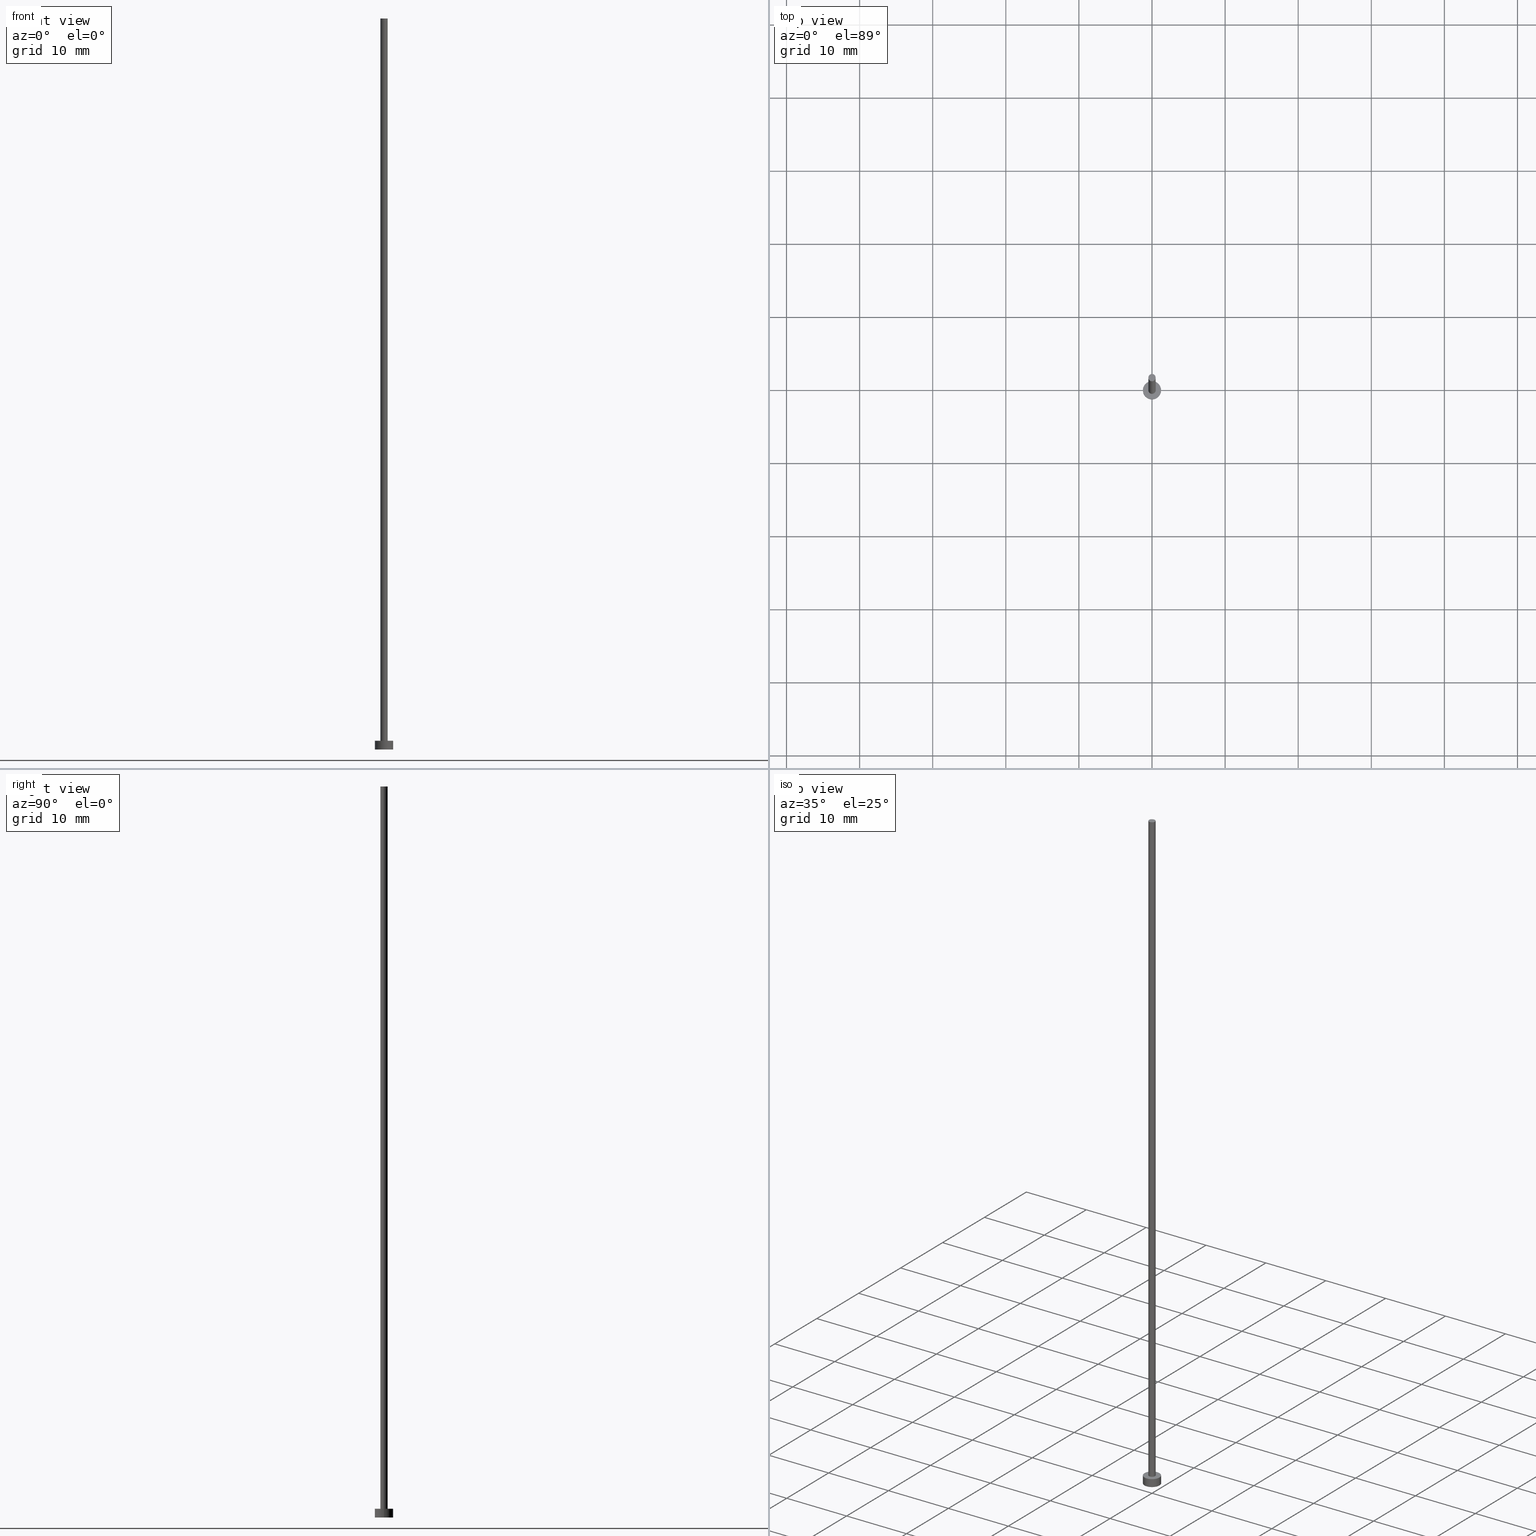
[diagram: canonical four-view strip — front | top / right | iso, engineering-drawing reading convention]
A machine part, canonical four-view strip (front | top / right | iso — engineering-drawing reading convention). The complete STEP part file that produces these views, byte-faithful:
ISO-10303-21;
HEADER;
FILE_DESCRIPTION (( 'STEP AP203' ),
    '1' );
FILE_NAME ('0186.STEP',
    '2024-06-05T07:44:16',
    ( '' ),
    ( '' ),
    'SwSTEP 2.0',
    'SolidWorks 2019',
    '' );
FILE_SCHEMA (( 'CONFIG_CONTROL_DESIGN' ));
ENDSEC;

DATA;
#1 = CALENDAR_DATE ( 2024, 5, 6 ) ;
#2 = ORIENTED_EDGE ( 'NONE', *, *, #16, .F. ) ;
#3 = CC_DESIGN_DATE_AND_TIME_ASSIGNMENT ( #146, #101, ( #56 ) ) ;
#4 = DIRECTION ( 'NONE',  ( 0.000000000000000000, 0.000000000000000000, 1.000000000000000000 ) ) ;
#5 = ORIENTED_EDGE ( 'NONE', *, *, #85, .F. ) ;
#6 = ORIENTED_EDGE ( 'NONE', *, *, #182, .T. ) ;
#7 = ORIENTED_EDGE ( 'NONE', *, *, #85, .T. ) ;
#8 = UNCERTAINTY_MEASURE_WITH_UNIT (LENGTH_MEASURE( 1.000000000000000082E-05 ), #197, 'distance_accuracy_value', 'NONE');
#9 = AXIS2_PLACEMENT_3D ( 'NONE', #207, #115, #190 ) ;
#10 = DIRECTION ( 'NONE',  ( 0.000000000000000000, 0.000000000000000000, 1.000000000000000000 ) ) ;
#11 = DIRECTION ( 'NONE',  ( 1.000000000000000000, 0.000000000000000000, 0.000000000000000000 ) ) ;
#12 = CARTESIAN_POINT ( 'NONE',  ( 0.000000000000000000, 0.000000000000000000, 1.199999999999999956 ) ) ;
#13 = AXIS2_PLACEMENT_3D ( 'NONE', #169, #189, #51 ) ;
#14 = CC_DESIGN_APPROVAL ( #106, ( #56 ) ) ;
#15 = DIRECTION ( 'NONE',  ( 0.000000000000000000, 0.000000000000000000, 1.000000000000000000 ) ) ;
#16 = EDGE_CURVE ( 'NONE', #145, #104, #68, .T. ) ;
#17 = CARTESIAN_POINT ( 'NONE',  ( 0.000000000000000000, 0.000000000000000000, 0.000000000000000000 ) ) ;
#18 = PERSON_AND_ORGANIZATION ( #181, #187 ) ;
#19 = CC_DESIGN_PERSON_AND_ORGANIZATION_ASSIGNMENT ( #18, #151, ( #255 ) ) ;
#20 = LOCAL_TIME ( 9, 44, 16.00000000000000000, #57 ) ;
#21 =( NAMED_UNIT ( * ) SI_UNIT ( $, .STERADIAN. ) SOLID_ANGLE_UNIT ( ) );
#22 = CLOSED_SHELL ( 'NONE', ( #244, #235, #35, #214, #241, #124, #202 ) ) ;
#23 = EDGE_LOOP ( 'NONE', ( #29, #178, #88, #203 ) ) ;
#24 = DATE_AND_TIME ( #74, #153 ) ;
#25 = PERSON_AND_ORGANIZATION ( #181, #187 ) ;
#26 = EDGE_LOOP ( 'NONE', ( #215, #128, #201, #240 ) ) ;
#27 = SECURITY_CLASSIFICATION_LEVEL ( 'unclassified' ) ;
#28 = CC_DESIGN_APPROVAL ( #72, ( #177 ) ) ;
#29 = ORIENTED_EDGE ( 'NONE', *, *, #45, .F. ) ;
#30 = CARTESIAN_POINT ( 'NONE',  ( -1.250000000000000000, 0.000000000000000000, 1.199999999999999956 ) ) ;
#31 = VECTOR ( 'NONE', #133, 1000.000000000000000 ) ;
#32 = CARTESIAN_POINT ( 'NONE',  ( 0.000000000000000000, 0.000000000000000000, 100.0000000000000000 ) ) ;
#33 = DIRECTION ( 'NONE',  ( 0.000000000000000000, 0.000000000000000000, 1.000000000000000000 ) ) ;
#34 = CARTESIAN_POINT ( 'NONE',  ( 1.250000000000000000, 1.530808498934191571E-16, 0.000000000000000000 ) ) ;
#35 = ADVANCED_FACE ( 'NONE', ( #94 ), #150, .T. ) ;
#36 = CARTESIAN_POINT ( 'NONE',  ( 0.000000000000000000, 0.000000000000000000, 1.199999999999999956 ) ) ;
#37 = APPROVAL_DATE_TIME ( #84, #72 ) ;
#38 = DIRECTION ( 'NONE',  ( 0.000000000000000000, 0.000000000000000000, 1.000000000000000000 ) ) ;
#39 = CC_DESIGN_PERSON_AND_ORGANIZATION_ASSIGNMENT ( #238, #58, ( #177 ) ) ;
#40 = CALENDAR_DATE ( 2024, 5, 6 ) ;
#41 = FACE_OUTER_BOUND ( 'NONE', #144, .T. ) ;
#42 = CALENDAR_DATE ( 2024, 5, 6 ) ;
#43 = ORIENTED_EDGE ( 'NONE', *, *, #221, .F. ) ;
#44 = ORIENTED_EDGE ( 'NONE', *, *, #174, .F. ) ;
#45 = EDGE_CURVE ( 'NONE', #199, #145, #117, .T. ) ;
#46 = ORIENTED_EDGE ( 'NONE', *, *, #194, .F. ) ;
#47 = APPROVAL_PERSON_ORGANIZATION ( #179, #106, #86 ) ;
#48 = ORIENTED_EDGE ( 'NONE', *, *, #174, .T. ) ;
#49 = DIRECTION ( 'NONE',  ( 0.000000000000000000, 0.000000000000000000, 1.000000000000000000 ) ) ;
#50 = APPROVAL ( #175, 'NEUR�EN�' ) ;
#51 = DIRECTION ( 'NONE',  ( 1.000000000000000000, 0.000000000000000000, 0.000000000000000000 ) ) ;
#52 = CARTESIAN_POINT ( 'NONE',  ( 0.000000000000000000, 0.000000000000000000, 100.0000000000000000 ) ) ;
#53 = CARTESIAN_POINT ( 'NONE',  ( 0.000000000000000000, 0.000000000000000000, 100.0000000000000000 ) ) ;
#54 = DIRECTION ( 'NONE',  ( 1.000000000000000000, 0.000000000000000000, 0.000000000000000000 ) ) ;
#55 = CALENDAR_DATE ( 2024, 5, 6 ) ;
#56 = SECURITY_CLASSIFICATION ( '', '', #27 ) ;
#57 = COORDINATED_UNIVERSAL_TIME_OFFSET ( 1, 0, .AHEAD. ) ;
#58 = PERSON_AND_ORGANIZATION_ROLE ( 'creator' ) ;
#59 = CARTESIAN_POINT ( 'NONE',  ( 0.000000000000000000, 0.000000000000000000, 1.199999999999999956 ) ) ;
#60 = PERSON_AND_ORGANIZATION_ROLE ( 'design_owner' ) ;
#61 = APPROVAL_STATUS ( 'not_yet_approved' ) ;
#62 = EDGE_LOOP ( 'NONE', ( #46, #2 ) ) ;
#63 = ORIENTED_EDGE ( 'NONE', *, *, #142, .T. ) ;
#64 = CIRCLE ( 'NONE', #13, 1.250000000000000000 ) ;
#65 = EDGE_CURVE ( 'NONE', #204, #239, #111, .T. ) ;
#66 = PERSON_AND_ORGANIZATION_ROLE ( 'design_supplier' ) ;
#67 = ORIENTED_EDGE ( 'NONE', *, *, #97, .T. ) ;
#68 = CIRCLE ( 'NONE', #250, 1.250000000000000000 ) ;
#69 = AXIS2_PLACEMENT_3D ( 'NONE', #166, #76, #11 ) ;
#70 = CARTESIAN_POINT ( 'NONE',  ( 0.000000000000000000, 0.000000000000000000, 100.0000000000000000 ) ) ;
#71 = DESIGN_CONTEXT ( 'detailed design', #172, 'design' ) ;
#72 = APPROVAL ( #140, 'NEUR�EN�' ) ;
#73 = FACE_OUTER_BOUND ( 'NONE', #243, .T. ) ;
#74 = CALENDAR_DATE ( 2024, 5, 6 ) ;
#75 = PLANE ( 'NONE',  #123 ) ;
#76 = DIRECTION ( 'NONE',  ( 0.000000000000000000, 0.000000000000000000, 1.000000000000000000 ) ) ;
#77 = AXIS2_PLACEMENT_3D ( 'NONE', #59, #82, #212 ) ;
#78 = LOCAL_TIME ( 9, 44, 16.00000000000000000, #127 ) ;
#79 = DIRECTION ( 'NONE',  ( -0.000000000000000000, -0.000000000000000000, -1.000000000000000000 ) ) ;
#80 = COORDINATED_UNIVERSAL_TIME_OFFSET ( 1, 0, .AHEAD. ) ;
#81 = APPLICATION_PROTOCOL_DEFINITION ( 'international standard', 'config_control_design', 1994, #196 ) ;
#82 = DIRECTION ( 'NONE',  ( -0.000000000000000000, -0.000000000000000000, -1.000000000000000000 ) ) ;
#83 = PERSON_AND_ORGANIZATION ( #181, #187 ) ;
#84 = DATE_AND_TIME ( #40, #119 ) ;
#85 = EDGE_CURVE ( 'NONE', #183, #185, #254, .T. ) ;
#86 = APPROVAL_ROLE ( '' ) ;
#87 = PRODUCT ( '0186', '0186', '', ( #96 ) ) ;
#88 = ORIENTED_EDGE ( 'NONE', *, *, #129, .T. ) ;
#89 = DIRECTION ( 'NONE',  ( -1.000000000000000000, 0.000000000000000000, 0.000000000000000000 ) ) ;
#90 = VECTOR ( 'NONE', #226, 1000.000000000000000 ) ;
#91 = CARTESIAN_POINT ( 'NONE',  ( -0.5000000000000000000, 0.000000000000000000, 100.0000000000000000 ) ) ;
#92 = DIRECTION ( 'NONE',  ( 1.000000000000000000, 0.000000000000000000, -0.000000000000000000 ) ) ;
#93 = DIRECTION ( 'NONE',  ( 0.000000000000000000, 0.000000000000000000, 1.000000000000000000 ) ) ;
#94 = FACE_OUTER_BOUND ( 'NONE', #23, .T. ) ;
#95 = CC_DESIGN_APPROVAL ( #50, ( #255 ) ) ;
#96 = MECHANICAL_CONTEXT ( 'NONE', #196, 'mechanical' ) ;
#97 = EDGE_CURVE ( 'NONE', #239, #204, #112, .T. ) ;
#98 = DIRECTION ( 'NONE',  ( -0.000000000000000000, -0.000000000000000000, -1.000000000000000000 ) ) ;
#99 = CIRCLE ( 'NONE', #167, 0.5000000000000000000 ) ;
#100 = COORDINATED_UNIVERSAL_TIME_OFFSET ( 1, 0, .AHEAD. ) ;
#101 = DATE_TIME_ROLE ( 'classification_date' ) ;
#102 = AXIS2_PLACEMENT_3D ( 'NONE', #213, #98, #253 ) ;
#103 = APPROVAL_DATE_TIME ( #24, #106 ) ;
#104 = VERTEX_POINT ( 'NONE', #171 ) ;
#105 = PRODUCT_DEFINITION_SHAPE ( 'NONE', 'NONE',  #177 ) ;
#106 = APPROVAL ( #61, 'NEUR�EN�' ) ;
#107 = COORDINATED_UNIVERSAL_TIME_OFFSET ( 1, 0, .AHEAD. ) ;
#108 = EDGE_LOOP ( 'NONE', ( #109, #63 ) ) ;
#109 = ORIENTED_EDGE ( 'NONE', *, *, #229, .T. ) ;
#110 = LINE ( 'NONE', #188, #143 ) ;
#111 = CIRCLE ( 'NONE', #116, 0.5000000000000000000 ) ;
#112 = CIRCLE ( 'NONE', #69, 0.5000000000000000000 ) ;
#113 = PLANE ( 'NONE',  #162 ) ;
#114 = LINE ( 'NONE', #155, #31 ) ;
#115 = DIRECTION ( 'NONE',  ( 0.000000000000000000, 0.000000000000000000, 1.000000000000000000 ) ) ;
#116 = AXIS2_PLACEMENT_3D ( 'NONE', #12, #49, #54 ) ;
#117 = LINE ( 'NONE', #205, #217 ) ;
#118 = CIRCLE ( 'NONE', #9, 1.250000000000000000 ) ;
#119 = LOCAL_TIME ( 9, 44, 16.00000000000000000, #100 ) ;
#120 = DATE_AND_TIME ( #42, #20 ) ;
#121 = DATE_AND_TIME ( #55, #168 ) ;
#122 = APPROVAL_ROLE ( '' ) ;
#123 = AXIS2_PLACEMENT_3D ( 'NONE', #152, #248, #228 ) ;
#124 = ADVANCED_FACE ( 'NONE', ( #73 ), #154, .T. ) ;
#125 = APPROVAL_ROLE ( '' ) ;
#126 = PERSON_AND_ORGANIZATION ( #181, #187 ) ;
#127 = COORDINATED_UNIVERSAL_TIME_OFFSET ( 1, 0, .AHEAD. ) ;
#128 = ORIENTED_EDGE ( 'NONE', *, *, #45, .T. ) ;
#129 = EDGE_CURVE ( 'NONE', #147, #104, #206, .T. ) ;
#130 = CARTESIAN_POINT ( 'NONE',  ( 0.000000000000000000, 0.000000000000000000, 1.199999999999999956 ) ) ;
#131 = CARTESIAN_POINT ( 'NONE',  ( 1.250000000000000000, 1.530808498934191571E-16, 1.199999999999999956 ) ) ;
#132 = CARTESIAN_POINT ( 'NONE',  ( 0.5000000000000000000, 6.123233995736766036E-17, 100.0000000000000000 ) ) ;
#133 = DIRECTION ( 'NONE',  ( -0.000000000000000000, -0.000000000000000000, -1.000000000000000000 ) ) ;
#134 = DIRECTION ( 'NONE',  ( 1.000000000000000000, 0.000000000000000000, -0.000000000000000000 ) ) ;
#135 =( GEOMETRIC_REPRESENTATION_CONTEXT ( 3 ) GLOBAL_UNCERTAINTY_ASSIGNED_CONTEXT ( ( #8 ) ) GLOBAL_UNIT_ASSIGNED_CONTEXT ( ( #197, #161, #21 ) ) REPRESENTATION_CONTEXT ( 'NONE', 'WORKASPACE' ) );
#136 = CARTESIAN_POINT ( 'NONE',  ( 0.000000000000000000, 0.000000000000000000, 0.000000000000000000 ) ) ;
#137 = FACE_OUTER_BOUND ( 'NONE', #26, .T. ) ;
#138 = CC_DESIGN_PERSON_AND_ORGANIZATION_ASSIGNMENT ( #165, #66, ( #255 ) ) ;
#139 = CIRCLE ( 'NONE', #234, 1.250000000000000000 ) ;
#140 = APPROVAL_STATUS ( 'not_yet_approved' ) ;
#141 = ORIENTED_EDGE ( 'NONE', *, *, #65, .F. ) ;
#142 = EDGE_CURVE ( 'NONE', #199, #147, #139, .T. ) ;
#143 = VECTOR ( 'NONE', #186, 1000.000000000000000 ) ;
#144 = EDGE_LOOP ( 'NONE', ( #5, #6, #67, #44 ) ) ;
#145 = VERTEX_POINT ( 'NONE', #34 ) ;
#146 = DATE_AND_TIME ( #1, #78 ) ;
#147 = VERTEX_POINT ( 'NONE', #30 ) ;
#148 = AXIS2_PLACEMENT_3D ( 'NONE', #70, #33, #227 ) ;
#149 = DIRECTION ( 'NONE',  ( -1.000000000000000000, 0.000000000000000000, 0.000000000000000000 ) ) ;
#150 = CYLINDRICAL_SURFACE ( 'NONE', #216, 1.250000000000000000 ) ;
#151 = PERSON_AND_ORGANIZATION_ROLE ( 'creator' ) ;
#152 = CARTESIAN_POINT ( 'NONE',  ( 0.000000000000000000, 0.000000000000000000, 1.199999999999999956 ) ) ;
#153 = LOCAL_TIME ( 9, 44, 16.00000000000000000, #107 ) ;
#154 = CYLINDRICAL_SURFACE ( 'NONE', #195, 0.5000000000000000000 ) ;
#155 = CARTESIAN_POINT ( 'NONE',  ( 0.5000000000000000000, 6.123233995736766036E-17, 100.0000000000000000 ) ) ;
#156 = DIRECTION ( 'NONE',  ( 1.000000000000000000, 0.000000000000000000, 0.000000000000000000 ) ) ;
#157 = FACE_OUTER_BOUND ( 'NONE', #62, .T. ) ;
#158 = AXIS2_PLACEMENT_3D ( 'NONE', #17, #38, #134 ) ;
#159 = CC_DESIGN_DATE_AND_TIME_ASSIGNMENT ( #120, #211, ( #177 ) ) ;
#160 = CARTESIAN_POINT ( 'NONE',  ( 0.5000000000000000000, 6.123233995736766036E-17, 1.199999999999999956 ) ) ;
#161 =( NAMED_UNIT ( * ) PLANE_ANGLE_UNIT ( ) SI_UNIT ( $, .RADIAN. ) );
#162 = AXIS2_PLACEMENT_3D ( 'NONE', #32, #10, #92 ) ;
#163 = ORIENTED_EDGE ( 'NONE', *, *, #182, .F. ) ;
#164 = ORIENTED_EDGE ( 'NONE', *, *, #97, .F. ) ;
#165 = PERSON_AND_ORGANIZATION ( #181, #187 ) ;
#166 = CARTESIAN_POINT ( 'NONE',  ( 0.000000000000000000, 0.000000000000000000, 1.199999999999999956 ) ) ;
#167 = AXIS2_PLACEMENT_3D ( 'NONE', #52, #231, #209 ) ;
#168 = LOCAL_TIME ( 9, 44, 16.00000000000000000, #80 ) ;
#169 = CARTESIAN_POINT ( 'NONE',  ( 0.000000000000000000, 0.000000000000000000, 0.000000000000000000 ) ) ;
#170 = CARTESIAN_POINT ( 'NONE',  ( -0.5000000000000000000, 0.000000000000000000, 1.199999999999999956 ) ) ;
#171 = CARTESIAN_POINT ( 'NONE',  ( -1.250000000000000000, 0.000000000000000000, 0.000000000000000000 ) ) ;
#172 = APPLICATION_CONTEXT ( 'configuration controlled 3d designs of mechanical parts and assemblies' ) ;
#173 = DIRECTION ( 'NONE',  ( -0.000000000000000000, -0.000000000000000000, -1.000000000000000000 ) ) ;
#174 = EDGE_CURVE ( 'NONE', #185, #204, #110, .T. ) ;
#175 = APPROVAL_STATUS ( 'not_yet_approved' ) ;
#176 = CYLINDRICAL_SURFACE ( 'NONE', #77, 1.250000000000000000 ) ;
#177 = PRODUCT_DEFINITION ( 'NEZN�M�', '', #255, #71 ) ;
#178 = ORIENTED_EDGE ( 'NONE', *, *, #229, .F. ) ;
#179 = PERSON_AND_ORGANIZATION ( #181, #187 ) ;
#180 = CARTESIAN_POINT ( 'NONE',  ( 0.000000000000000000, 0.000000000000000000, 0.000000000000000000 ) ) ;
#181 = PERSON ( 'NEUR�EN�', 'NEUR�EN�', 'NEUR�EN�', ('NEUR�EN�'), ('NEUR�EN�'), ('NEUR�EN�') ) ;
#182 = EDGE_CURVE ( 'NONE', #183, #239, #114, .T. ) ;
#183 = VERTEX_POINT ( 'NONE', #132 ) ;
#184 = CC_DESIGN_SECURITY_CLASSIFICATION ( #56, ( #255 ) ) ;
#185 = VERTEX_POINT ( 'NONE', #91 ) ;
#186 = DIRECTION ( 'NONE',  ( -0.000000000000000000, -0.000000000000000000, -1.000000000000000000 ) ) ;
#187 = ORGANIZATION ( 'NEUR�EN�', 'NEUR�EN�', '' ) ;
#188 = CARTESIAN_POINT ( 'NONE',  ( -0.5000000000000000000, 0.000000000000000000, 100.0000000000000000 ) ) ;
#189 = DIRECTION ( 'NONE',  ( 0.000000000000000000, 0.000000000000000000, 1.000000000000000000 ) ) ;
#190 = DIRECTION ( 'NONE',  ( 1.000000000000000000, 0.000000000000000000, 0.000000000000000000 ) ) ;
#191 = FACE_OUTER_BOUND ( 'NONE', #219, .T. ) ;
#192 = PLANE ( 'NONE',  #158 ) ;
#193 = APPROVAL_DATE_TIME ( #121, #50 ) ;
#194 = EDGE_CURVE ( 'NONE', #104, #145, #64, .T. ) ;
#195 = AXIS2_PLACEMENT_3D ( 'NONE', #53, #79, #149 ) ;
#196 = APPLICATION_CONTEXT ( 'configuration controlled 3d designs of mechanical parts and assemblies' ) ;
#197 =( LENGTH_UNIT ( ) NAMED_UNIT ( * ) SI_UNIT ( .MILLI., .METRE. ) );
#198 = AXIS2_PLACEMENT_3D ( 'NONE', #136, #15, #156 ) ;
#199 = VERTEX_POINT ( 'NONE', #131 ) ;
#200 = SHAPE_DEFINITION_REPRESENTATION ( #105, #230 ) ;
#201 = ORIENTED_EDGE ( 'NONE', *, *, #16, .T. ) ;
#202 = ADVANCED_FACE ( 'NONE', ( #191 ), #113, .T. ) ;
#203 = ORIENTED_EDGE ( 'NONE', *, *, #194, .T. ) ;
#204 = VERTEX_POINT ( 'NONE', #170 ) ;
#205 = CARTESIAN_POINT ( 'NONE',  ( 1.250000000000000000, 1.530808498934191571E-16, 1.199999999999999956 ) ) ;
#206 = LINE ( 'NONE', #249, #90 ) ;
#207 = CARTESIAN_POINT ( 'NONE',  ( 0.000000000000000000, 0.000000000000000000, 1.199999999999999956 ) ) ;
#208 = PRODUCT_RELATED_PRODUCT_CATEGORY ( 'detail', '', ( #87 ) ) ;
#209 = DIRECTION ( 'NONE',  ( 1.000000000000000000, 0.000000000000000000, 0.000000000000000000 ) ) ;
#210 = DIRECTION ( 'NONE',  ( 1.000000000000000000, 0.000000000000000000, 0.000000000000000000 ) ) ;
#211 = DATE_TIME_ROLE ( 'creation_date' ) ;
#212 = DIRECTION ( 'NONE',  ( -1.000000000000000000, 0.000000000000000000, 0.000000000000000000 ) ) ;
#213 = CARTESIAN_POINT ( 'NONE',  ( 0.000000000000000000, 0.000000000000000000, 100.0000000000000000 ) ) ;
#214 = ADVANCED_FACE ( 'NONE', ( #247, #245 ), #75, .T. ) ;
#215 = ORIENTED_EDGE ( 'NONE', *, *, #142, .F. ) ;
#216 = AXIS2_PLACEMENT_3D ( 'NONE', #36, #232, #89 ) ;
#217 = VECTOR ( 'NONE', #173, 1000.000000000000000 ) ;
#218 = APPROVAL_PERSON_ORGANIZATION ( #233, #72, #125 ) ;
#219 = EDGE_LOOP ( 'NONE', ( #223, #7 ) ) ;
#220 = ORIENTED_EDGE ( 'NONE', *, *, #65, .T. ) ;
#221 = EDGE_CURVE ( 'NONE', #185, #183, #99, .T. ) ;
#222 = EDGE_LOOP ( 'NONE', ( #141, #164 ) ) ;
#223 = ORIENTED_EDGE ( 'NONE', *, *, #221, .T. ) ;
#224 = APPROVAL_PERSON_ORGANIZATION ( #126, #50, #122 ) ;
#225 = CC_DESIGN_PERSON_AND_ORGANIZATION_ASSIGNMENT ( #83, #60, ( #87 ) ) ;
#226 = DIRECTION ( 'NONE',  ( -0.000000000000000000, -0.000000000000000000, -1.000000000000000000 ) ) ;
#227 = DIRECTION ( 'NONE',  ( 1.000000000000000000, 0.000000000000000000, 0.000000000000000000 ) ) ;
#228 = DIRECTION ( 'NONE',  ( 1.000000000000000000, 0.000000000000000000, -0.000000000000000000 ) ) ;
#229 = EDGE_CURVE ( 'NONE', #147, #199, #118, .T. ) ;
#230 = ADVANCED_BREP_SHAPE_REPRESENTATION ( '0186', ( #236, #198 ), #135 ) ;
#231 = DIRECTION ( 'NONE',  ( 0.000000000000000000, 0.000000000000000000, 1.000000000000000000 ) ) ;
#232 = DIRECTION ( 'NONE',  ( -0.000000000000000000, -0.000000000000000000, -1.000000000000000000 ) ) ;
#233 = PERSON_AND_ORGANIZATION ( #181, #187 ) ;
#234 = AXIS2_PLACEMENT_3D ( 'NONE', #130, #93, #210 ) ;
#235 = ADVANCED_FACE ( 'NONE', ( #137 ), #176, .T. ) ;
#236 = MANIFOLD_SOLID_BREP ( 'P�idat vysunut�m3', #22 ) ;
#237 = APPLICATION_PROTOCOL_DEFINITION ( 'international standard', 'config_control_design', 1994, #172 ) ;
#238 = PERSON_AND_ORGANIZATION ( #181, #187 ) ;
#239 = VERTEX_POINT ( 'NONE', #160 ) ;
#240 = ORIENTED_EDGE ( 'NONE', *, *, #129, .F. ) ;
#241 = ADVANCED_FACE ( 'NONE', ( #157 ), #192, .F. ) ;
#242 = PERSON_AND_ORGANIZATION_ROLE ( 'classification_officer' ) ;
#243 = EDGE_LOOP ( 'NONE', ( #163, #43, #48, #220 ) ) ;
#244 = ADVANCED_FACE ( 'NONE', ( #41 ), #251, .T. ) ;
#245 = FACE_OUTER_BOUND ( 'NONE', #108, .T. ) ;
#246 = DIRECTION ( 'NONE',  ( 1.000000000000000000, 0.000000000000000000, 0.000000000000000000 ) ) ;
#247 = FACE_BOUND ( 'NONE', #222, .T. ) ;
#248 = DIRECTION ( 'NONE',  ( 0.000000000000000000, 0.000000000000000000, 1.000000000000000000 ) ) ;
#249 = CARTESIAN_POINT ( 'NONE',  ( -1.250000000000000000, 0.000000000000000000, 1.199999999999999956 ) ) ;
#250 = AXIS2_PLACEMENT_3D ( 'NONE', #180, #4, #246 ) ;
#251 = CYLINDRICAL_SURFACE ( 'NONE', #102, 0.5000000000000000000 ) ;
#252 = CC_DESIGN_PERSON_AND_ORGANIZATION_ASSIGNMENT ( #25, #242, ( #56 ) ) ;
#253 = DIRECTION ( 'NONE',  ( -1.000000000000000000, 0.000000000000000000, 0.000000000000000000 ) ) ;
#254 = CIRCLE ( 'NONE', #148, 0.5000000000000000000 ) ;
#255 = PRODUCT_DEFINITION_FORMATION_WITH_SPECIFIED_SOURCE ( 'LIBOVOLN�', '', #87, .NOT_KNOWN. ) ;
ENDSEC;
END-ISO-10303-21;
